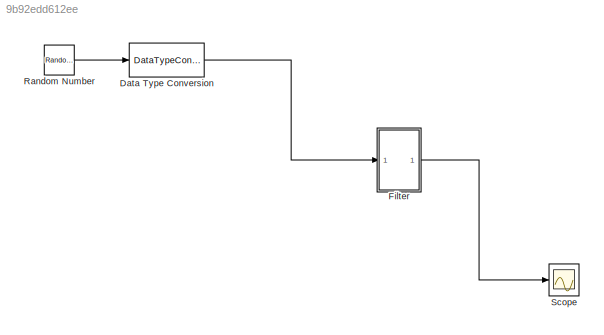
MODEL slx_9b92edd612ee
KIND model
CONFIG AbsTol = auto
CONFIG EnableMultiTasking = off
CONFIG FixedStep = auto
CONFIG MaxStep = auto
CONFIG MinStep = auto
CONFIG RelTol = 1e-3
CONFIG SampleTimeConstraint = Unconstrained
CONFIG Solver = VariableStepAuto
CONFIG SolverName = VariableStepAuto
CONFIG StartTime = 0.0
CONFIG StopTime = 10.0
BLOCK [DataTypeConversion] Data Type Conversion
  OutDataTypeStr = fixdt(1,5,2)
  RndMeth = Floor
  SaturateOnIntegerOverflow = off
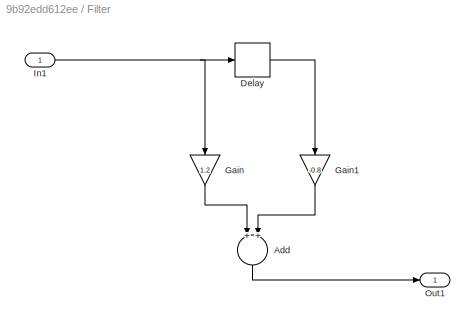
BLOCK [SubSystem] Filter
  Ports = [1, 1]
  RequestExecContextInheritance = off
  Variant = off
BLOCK [Sum] Filter/Add
  InputSameDT = off
  OutDataTypeStr = fixdt(1,5,2)
  Ports = [2, 1]
  SaturateOnIntegerOverflow = off
BLOCK [Delay] Filter/Delay
  DelayLength = 1
  InputPortMap = u0
  Ports = [1, 1]
BLOCK [Gain] Filter/Gain
  Gain = 1.2
  OutDataTypeStr = fixdt(1,6,3)
  ParamDataTypeStr = fixdt(1,5,3)
  SaturateOnIntegerOverflow = off
BLOCK [Gain] Filter/Gain1
  Gain = -0.8
  OutDataTypeStr = fixdt(1,5,3)
  ParamDataTypeStr = fixdt(1,6,3)
  SaturateOnIntegerOverflow = off
BLOCK [Inport] Filter/In1
  IconDisplay = Port number
BLOCK [Outport] Filter/Out1
  IconDisplay = Port number
BLOCK [RandomNumber] Random Number
  SampleTime = 0.1
BLOCK [Scope] Scope
  NumInputPorts = 1
  Ports = [1]
  ScopeSpecificationString = Simulink.scopes.TimeScopeBlockCfg('CurrentConfiguration', extmgr.ConfigurationSet(extmgr.Configuration('Core','General UI',true),extmgr.Configuration('Core','Source UI',true),extmgr.Configuration('Sources','WiredSimulink',true),extmgr.Configuration('Visuals','Time Domain',true),extmgr.Configuration('Tools','Plot Navigation',true),extmgr.Configuration('Tools','Measurements',true)),'Version','2017a'...<+1ch>
LINE Data Type Conversion:1 -> Filter:1
LINE Filter/Add:1 -> Filter/Out1:1
LINE Filter/Delay:1 -> Filter/Gain1:1
LINE Filter/Gain1:1 -> Filter/Add:2
LINE Filter/Gain:1 -> Filter/Add:1
NET Filter/In1:1 -> Filter/Delay:1, Filter/Gain:1
LINE Filter:1 -> Scope:1
LINE Random Number:1 -> Data Type Conversion:1
note: NET lines group one-source signal fan-out (src -> all destinations, sorted); 1:1 wires keep LINE
